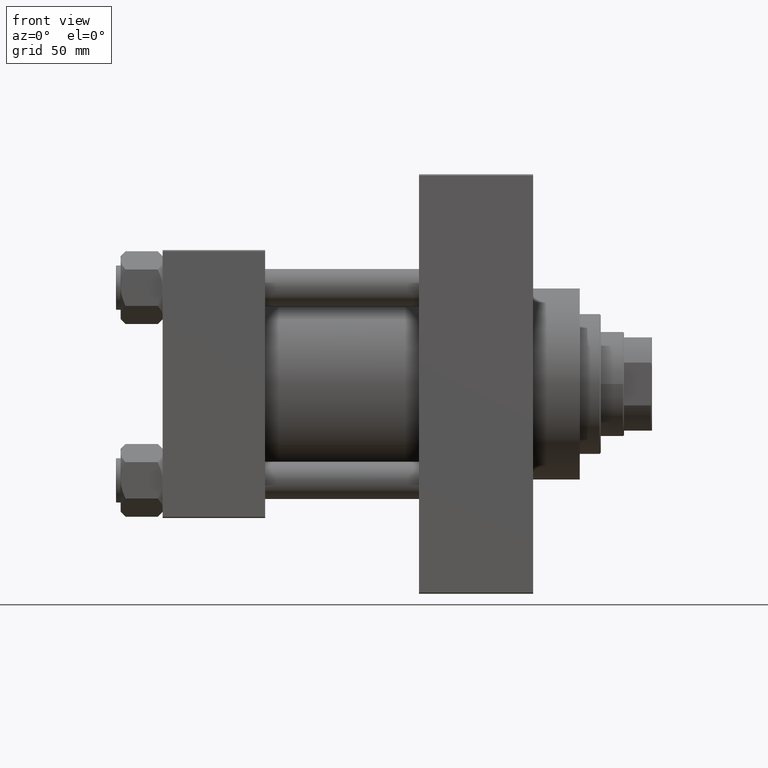
[diagram: clean part render]
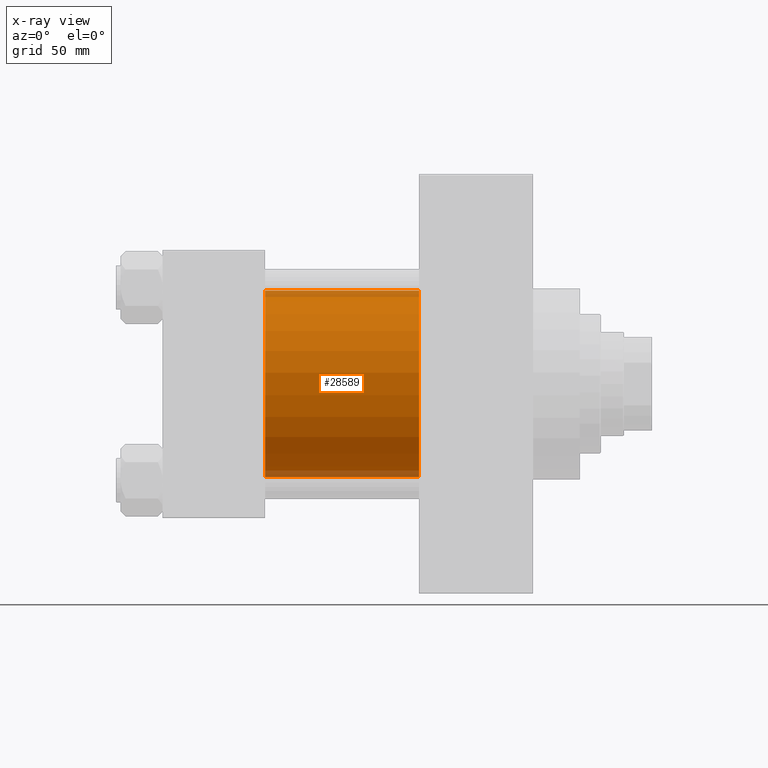
[diagram: x-ray — body ghosted, one internal face saturated and labeled with its STEP entity id]
A machine part, front view, then the same camera in x-ray: the body is ghosted and one INTERNAL B-rep face — a face not visible from any outside direction — is saturated and labeled: STEP entity #28589.
In plain terms, the highlighted cylindrical surface (partial cylindrical patch) has radius 40 mm, axis along (-1, -0, -0).
Its self-contained STEP definition (entity closure, byte-faithful):
#96 = CARTESIAN_POINT ( 'NONE',  ( 44.00000000000000000, -2.602085213965210642E-15, 0.000000000000000000 ) ) ;
#855 = DIRECTION ( 'NONE',  ( -1.000000000000000000, -0.000000000000000000, -0.000000000000000000 ) ) ;
#1670 = AXIS2_PLACEMENT_3D ( 'NONE', #6596, #16969, #21320 ) ;
#2140 = VECTOR ( 'NONE', #855, 1000.000000000000000 ) ;
#3038 = ORIENTED_EDGE ( 'NONE', *, *, #40194, .T. ) ;
#3515 = ORIENTED_EDGE ( 'NONE', *, *, #20833, .T. ) ;
#3534 = EDGE_LOOP ( 'NONE', ( #3038, #3515, #40182, #39484 ) ) ;
#6596 = CARTESIAN_POINT ( 'NONE',  ( 110.0000000000000000, -2.602085213965210642E-15, 0.000000000000000000 ) ) ;
#8556 = CARTESIAN_POINT ( 'NONE',  ( 110.0000000000000000, -2.602085213965210642E-15, 40.00000000000000000 ) ) ;
#9745 = FACE_OUTER_BOUND ( 'NONE', #3534, .T. ) ;
#10360 = EDGE_CURVE ( 'NONE', #42097, #23678, #11940, .T. ) ;
#10627 = CARTESIAN_POINT ( 'NONE',  ( 44.00000000000000000, -2.602085213965210642E-15, 40.00000000000000000 ) ) ;
#10982 = AXIS2_PLACEMENT_3D ( 'NONE', #96, #11421, #21338 ) ;
#11026 = DIRECTION ( 'NONE',  ( 0.000000000000000000, 0.000000000000000000, -1.000000000000000000 ) ) ;
#11421 = DIRECTION ( 'NONE',  ( 1.000000000000000000, 0.000000000000000000, 0.000000000000000000 ) ) ;
#11940 = LINE ( 'NONE', #8556, #2140 ) ;
#12741 = DIRECTION ( 'NONE',  ( -1.000000000000000000, -0.000000000000000000, -0.000000000000000000 ) ) ;
#14637 = CARTESIAN_POINT ( 'NONE',  ( 110.0000000000000000, -2.602085213965210642E-15, 0.000000000000000000 ) ) ;
#16969 = DIRECTION ( 'NONE',  ( -1.000000000000000000, -0.000000000000000000, -0.000000000000000000 ) ) ;
#20708 = VERTEX_POINT ( 'NONE', #20972 ) ;
#20833 = EDGE_CURVE ( 'NONE', #20708, #22268, #41446, .T. ) ;
#20972 = CARTESIAN_POINT ( 'NONE',  ( 110.0000000000000000, 2.296501982624201990E-15, -40.00000000000000000 ) ) ;
#21320 = DIRECTION ( 'NONE',  ( 0.000000000000000000, 0.000000000000000000, 1.000000000000000000 ) ) ;
#21338 = DIRECTION ( 'NONE',  ( 0.000000000000000000, 0.000000000000000000, -1.000000000000000000 ) ) ;
#21415 = EDGE_CURVE ( 'NONE', #23678, #22268, #27140, .T. ) ;
#22067 = CARTESIAN_POINT ( 'NONE',  ( 44.00000000000000000, 2.296501982624201990E-15, -40.00000000000000000 ) ) ;
#22268 = VERTEX_POINT ( 'NONE', #22067 ) ;
#22355 = DIRECTION ( 'NONE',  ( 1.000000000000000000, 0.000000000000000000, 0.000000000000000000 ) ) ;
#23678 = VERTEX_POINT ( 'NONE', #10627 ) ;
#24040 = VECTOR ( 'NONE', #12741, 1000.000000000000000 ) ;
#27140 = CIRCLE ( 'NONE', #10982, 40.00000000000000000 ) ;
#28589 = ADVANCED_FACE ( 'NONE', ( #9745 ), #46863, .F. ) ;
#32517 = CIRCLE ( 'NONE', #40985, 40.00000000000000000 ) ;
#39484 = ORIENTED_EDGE ( 'NONE', *, *, #10360, .F. ) ;
#40182 = ORIENTED_EDGE ( 'NONE', *, *, #21415, .F. ) ;
#40194 = EDGE_CURVE ( 'NONE', #42097, #20708, #32517, .T. ) ;
#40985 = AXIS2_PLACEMENT_3D ( 'NONE', #14637, #22355, #11026 ) ;
#41446 = LINE ( 'NONE', #45053, #24040 ) ;
#41538 = CARTESIAN_POINT ( 'NONE',  ( 110.0000000000000000, -2.602085213965210642E-15, 40.00000000000000000 ) ) ;
#42097 = VERTEX_POINT ( 'NONE', #41538 ) ;
#45053 = CARTESIAN_POINT ( 'NONE',  ( 110.0000000000000000, 2.296501982624201990E-15, -40.00000000000000000 ) ) ;
#46863 = CYLINDRICAL_SURFACE ( 'NONE', #1670, 40.00000000000000000 ) ;